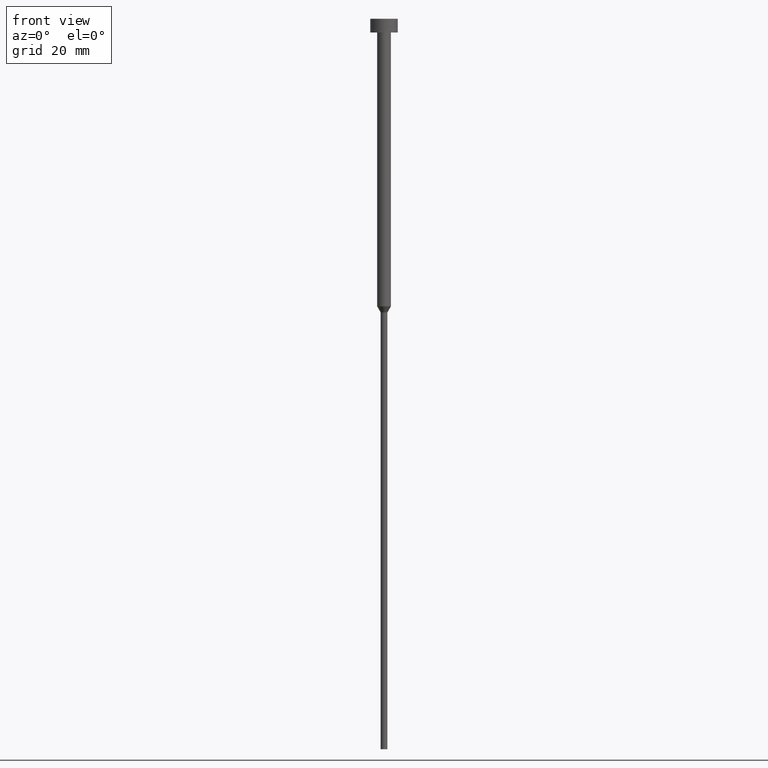
[diagram: clean part render]
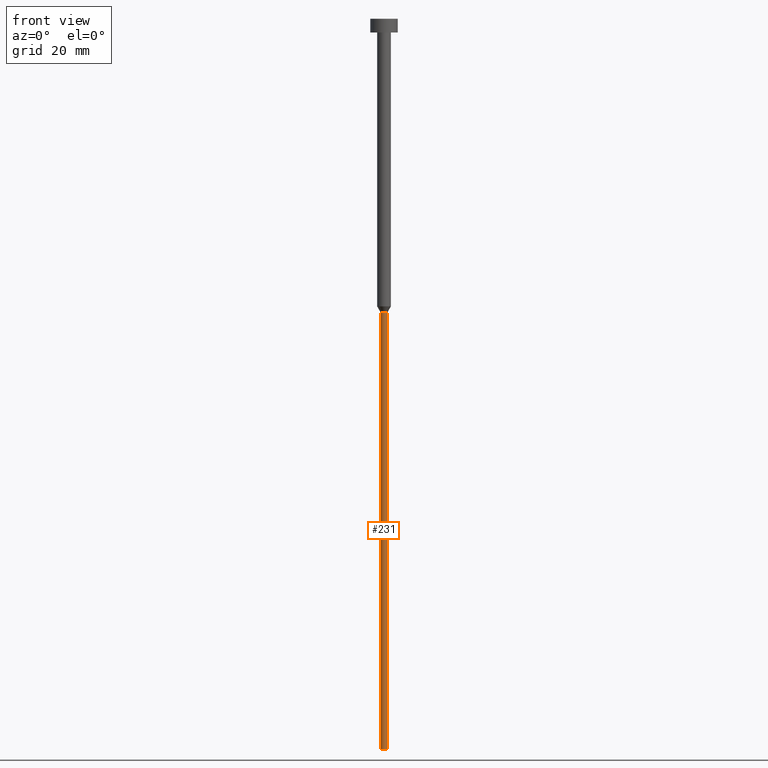
[diagram: same view with one face highlighted and labeled with its STEP entity id]
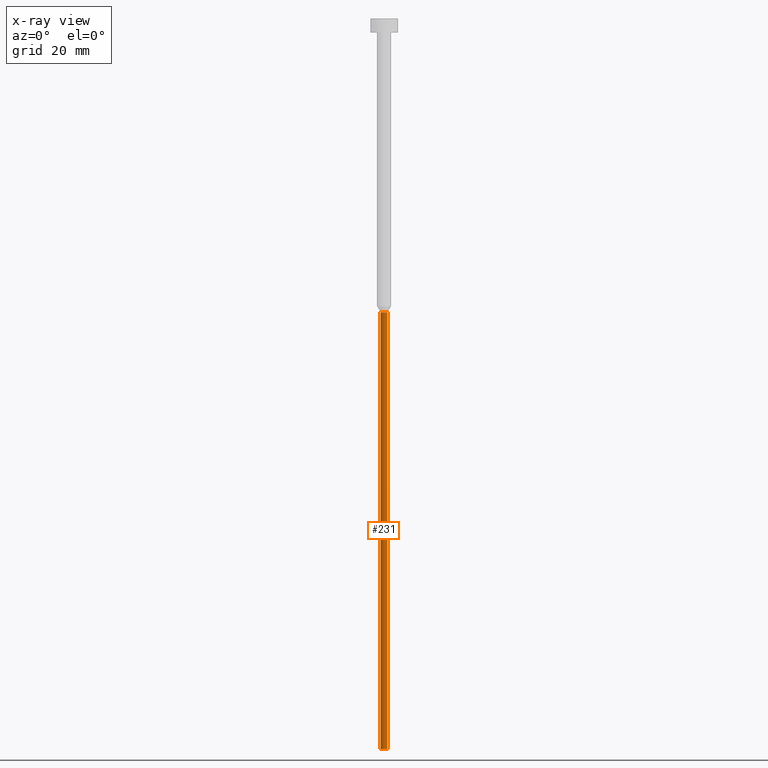
[diagram: x-ray of the same camera — body ghosted, the highlighted face saturated]
A machine part, front view. The second image highlights one B-rep face of the part: STEP entity #231.
The next image is the same camera in x-ray: the body ghosted, the highlighted face saturated — about 0% of this face is hidden behind the body in this view.
In plain terms, the highlighted cylindrical surface (edge-blend (fillet) strip) has radius 0.75 mm, axis along (-0, -0, 1).
Its self-contained STEP definition (entity closure, byte-faithful):
#2 = CARTESIAN_POINT ( 'NONE',  ( 0.7500000000000000000, 0.000000000000000000, 0.000000000000000000 ) ) ;
#8 = ORIENTED_EDGE ( 'NONE', *, *, #110, .F. ) ;
#9 = CARTESIAN_POINT ( 'NONE',  ( 0.000000000000000000, 0.000000000000000000, -64.29903810567664380 ) ) ;
#10 = ORIENTED_EDGE ( 'NONE', *, *, #26, .T. ) ;
#12 = VERTEX_POINT ( 'NONE', #74 ) ;
#26 = EDGE_CURVE ( 'NONE', #153, #12, #139, .T. ) ;
#28 = DIRECTION ( 'NONE',  ( -0.000000000000000000, -0.000000000000000000, 1.000000000000000000 ) ) ;
#38 = ORIENTED_EDGE ( 'NONE', *, *, #195, .F. ) ;
#47 = CIRCLE ( 'NONE', #87, 0.7500000000000000000 ) ;
#59 = DIRECTION ( 'NONE',  ( 1.000000000000000000, 0.000000000000000000, 0.000000000000000000 ) ) ;
#67 = FACE_OUTER_BOUND ( 'NONE', #244, .T. ) ;
#71 = ORIENTED_EDGE ( 'NONE', *, *, #136, .T. ) ;
#74 = CARTESIAN_POINT ( 'NONE',  ( 0.7500000000000000000, 0.000000000000000000, -64.29903810567664380 ) ) ;
#87 = AXIS2_PLACEMENT_3D ( 'NONE', #9, #172, #59 ) ;
#89 = VERTEX_POINT ( 'NONE', #202 ) ;
#92 = DIRECTION ( 'NONE',  ( 1.000000000000000000, 0.000000000000000000, 0.000000000000000000 ) ) ;
#109 = DIRECTION ( 'NONE',  ( -0.000000000000000000, -0.000000000000000000, 1.000000000000000000 ) ) ;
#110 = EDGE_CURVE ( 'NONE', #89, #12, #47, .T. ) ;
#114 = CARTESIAN_POINT ( 'NONE',  ( 0.7500000000000000000, 0.000000000000000000, -160.0000000000000000 ) ) ;
#116 = VECTOR ( 'NONE', #186, 1000.000000000000000 ) ;
#136 = EDGE_CURVE ( 'NONE', #260, #153, #242, .T. ) ;
#139 = LINE ( 'NONE', #2, #297 ) ;
#153 = VERTEX_POINT ( 'NONE', #114 ) ;
#158 = CYLINDRICAL_SURFACE ( 'NONE', #179, 0.7500000000000000000 ) ;
#172 = DIRECTION ( 'NONE',  ( -0.000000000000000000, -0.000000000000000000, 1.000000000000000000 ) ) ;
#179 = AXIS2_PLACEMENT_3D ( 'NONE', #218, #269, #315 ) ;
#186 = DIRECTION ( 'NONE',  ( -0.000000000000000000, -0.000000000000000000, 1.000000000000000000 ) ) ;
#195 = EDGE_CURVE ( 'NONE', #260, #89, #295, .T. ) ;
#202 = CARTESIAN_POINT ( 'NONE',  ( -0.7500000000000000000, 9.184850993605149670E-17, -64.29903810567664380 ) ) ;
#218 = CARTESIAN_POINT ( 'NONE',  ( 0.000000000000000000, 0.000000000000000000, 0.000000000000000000 ) ) ;
#231 = ADVANCED_FACE ( 'NONE', ( #67 ), #158, .T. ) ;
#242 = CIRCLE ( 'NONE', #329, 0.7500000000000000000 ) ;
#244 = EDGE_LOOP ( 'NONE', ( #38, #71, #10, #8 ) ) ;
#250 = CARTESIAN_POINT ( 'NONE',  ( -0.7500000000000000000, 9.184850993605149670E-17, -160.0000000000000000 ) ) ;
#260 = VERTEX_POINT ( 'NONE', #250 ) ;
#269 = DIRECTION ( 'NONE',  ( -0.000000000000000000, -0.000000000000000000, 1.000000000000000000 ) ) ;
#295 = LINE ( 'NONE', #349, #116 ) ;
#297 = VECTOR ( 'NONE', #109, 1000.000000000000000 ) ;
#309 = CARTESIAN_POINT ( 'NONE',  ( 0.000000000000000000, 0.000000000000000000, -160.0000000000000000 ) ) ;
#315 = DIRECTION ( 'NONE',  ( 1.000000000000000000, 0.000000000000000000, 0.000000000000000000 ) ) ;
#329 = AXIS2_PLACEMENT_3D ( 'NONE', #309, #28, #92 ) ;
#349 = CARTESIAN_POINT ( 'NONE',  ( -0.7500000000000000000, 9.184850993605149670E-17, 0.000000000000000000 ) ) ;